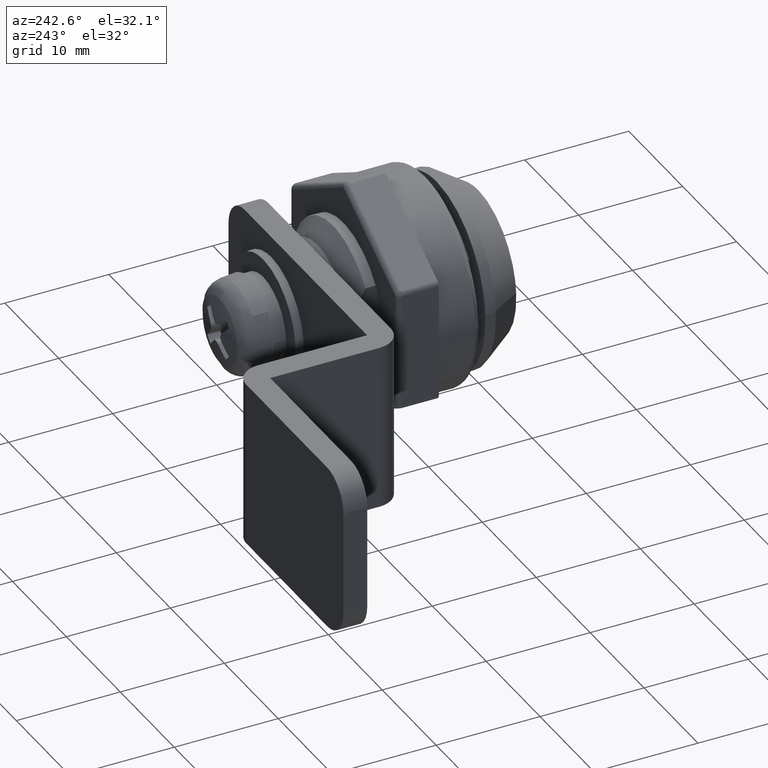
[diagram: clean part render]
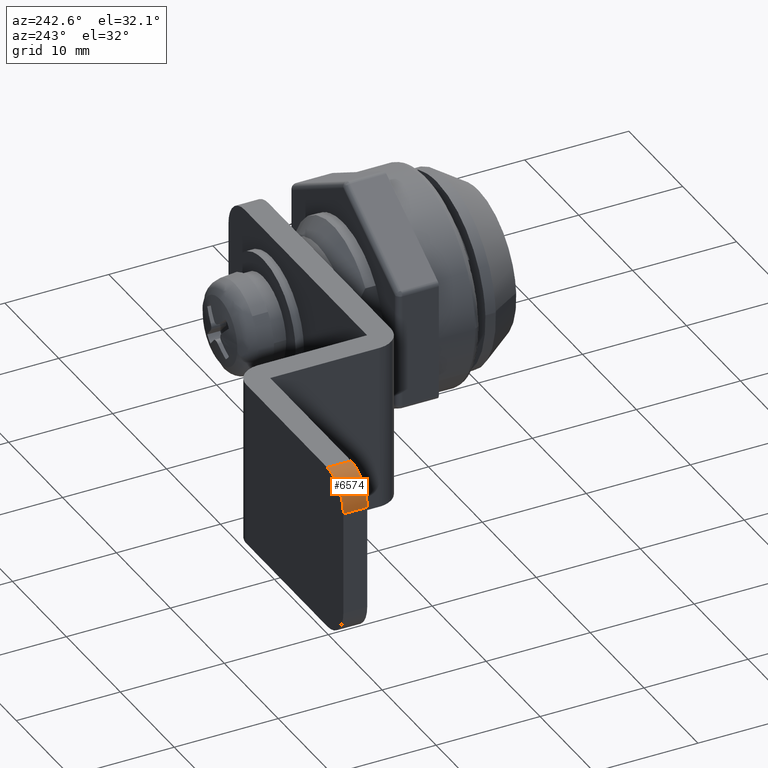
[diagram: same view with one face highlighted and labeled with its STEP entity id]
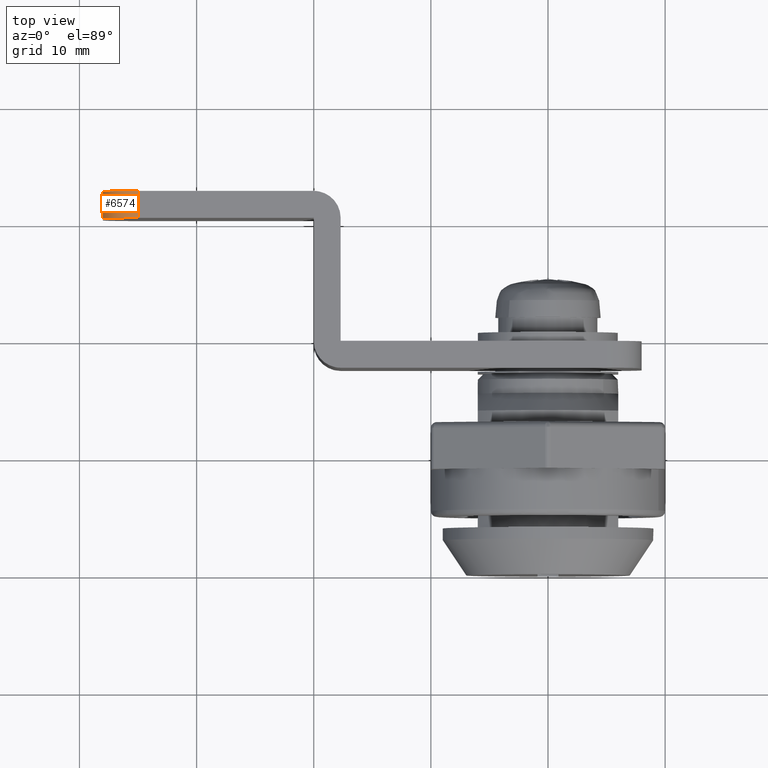
[diagram: same view with one face highlighted and labeled with its STEP entity id]
A machine part, auxiliary view. The second image highlights one B-rep face of the part: STEP entity #6574.
A second angle (top view) of the same face is appended — the face is thin or edge-on in the first view.
In plain terms, the highlighted face is a freeform B-spline surface patch.
Its self-contained STEP definition (entity closure, byte-faithful):
#6514=CARTESIAN_POINT('',(-34.973820393504880,30.342500000000001,7.999885769192513));
#6515=CARTESIAN_POINT('',(-34.973820393504880,32.758937500000002,7.999885769192513));
#6516=CARTESIAN_POINT('',(-38.190804026035252,30.342499999999998,8.027959960038642));
#6517=CARTESIAN_POINT('',(-38.190804026035252,32.758937500000009,8.027959960038642));
#6518=CARTESIAN_POINT('',(-37.994404395265612,30.342500000000001,4.816854381395430));
#6519=CARTESIAN_POINT('',(-37.994404395265612,32.758937500000002,4.816854381395430));
#6527=(BOUNDED_SURFACE()B_SPLINE_SURFACE(1,2,((#6514,#6516,#6518),(#6515,#6517,#6519)),.UNSPECIFIED.,.F.,.F.,.U.)B_SPLINE_SURFACE_WITH_KNOTS((2,2),(3,3),(0.0,2.416437500000004),(0.0,5.217748499531208),.UNSPECIFIED.)GEOMETRIC_REPRESENTATION_ITEM()RATIONAL_B_SPLINE_SURFACE(((1.0,0.681998360062499,1.0),(1.0,0.681998360062499,1.0)))REPRESENTATION_ITEM('')SURFACE());
#6528=CARTESIAN_POINT('',(-38.0,32.700000000000003,5.0));
#6529=VERTEX_POINT('',#6528);
#6530=CARTESIAN_POINT('',(-35.0,32.700000000000003,8.0));
#6531=VERTEX_POINT('',#6530);
#6532=CARTESIAN_POINT('',(-38.000000000000007,32.700000000000003,5.0));
#6533=CARTESIAN_POINT('',(-38.0,32.700000000000010,8.0));
#6534=CARTESIAN_POINT('',(-35.0,32.700000000000003,8.0));
#6542=(BOUNDED_CURVE()B_SPLINE_CURVE(2,(#6532,#6533,#6534),.UNSPECIFIED.,.F.,.U.)CURVE()GEOMETRIC_REPRESENTATION_ITEM()QUASI_UNIFORM_CURVE()RATIONAL_B_SPLINE_CURVE((1.0,0.707106781186548,1.0))REPRESENTATION_ITEM(''));
#6543=EDGE_CURVE('',#6529,#6531,#6542,.T.);
#6544=ORIENTED_EDGE('',*,*,#6543,.F.);
#6545=CARTESIAN_POINT('',(-38.0,30.399999999999999,5.0));
#6546=VERTEX_POINT('',#6545);
#6547=CARTESIAN_POINT('',(-38.0,30.399999999999999,5.0));
#6548=CARTESIAN_POINT('',(-38.0,32.700000000000003,5.0));
#6549=QUASI_UNIFORM_CURVE('',1,(#6547,#6548),.UNSPECIFIED.,.F.,.U.);
#6550=EDGE_CURVE('',#6546,#6529,#6549,.T.);
#6551=ORIENTED_EDGE('',*,*,#6550,.F.);
#6552=CARTESIAN_POINT('',(-35.0,30.399999999999999,8.0));
#6553=VERTEX_POINT('',#6552);
#6554=CARTESIAN_POINT('',(-35.0,30.399999999999999,8.0));
#6555=CARTESIAN_POINT('',(-38.0,30.400000000000002,8.0));
#6556=CARTESIAN_POINT('',(-38.000000000000007,30.399999999999999,5.0));
#6564=(BOUNDED_CURVE()B_SPLINE_CURVE(2,(#6554,#6555,#6556),.UNSPECIFIED.,.F.,.U.)CURVE()GEOMETRIC_REPRESENTATION_ITEM()QUASI_UNIFORM_CURVE()RATIONAL_B_SPLINE_CURVE((1.0,0.707106781186548,1.0))REPRESENTATION_ITEM(''));
#6565=EDGE_CURVE('',#6553,#6546,#6564,.T.);
#6566=ORIENTED_EDGE('',*,*,#6565,.F.);
#6567=CARTESIAN_POINT('',(-35.0,32.700000000000003,8.0));
#6568=CARTESIAN_POINT('',(-35.0,30.399999999999999,8.0));
#6569=QUASI_UNIFORM_CURVE('',1,(#6567,#6568),.UNSPECIFIED.,.F.,.U.);
#6570=EDGE_CURVE('',#6531,#6553,#6569,.T.);
#6571=ORIENTED_EDGE('',*,*,#6570,.F.);
#6572=EDGE_LOOP('',(#6544,#6551,#6566,#6571));
#6573=FACE_OUTER_BOUND('',#6572,.T.);
#6574=ADVANCED_FACE('',(#6573),#6527,.T.);